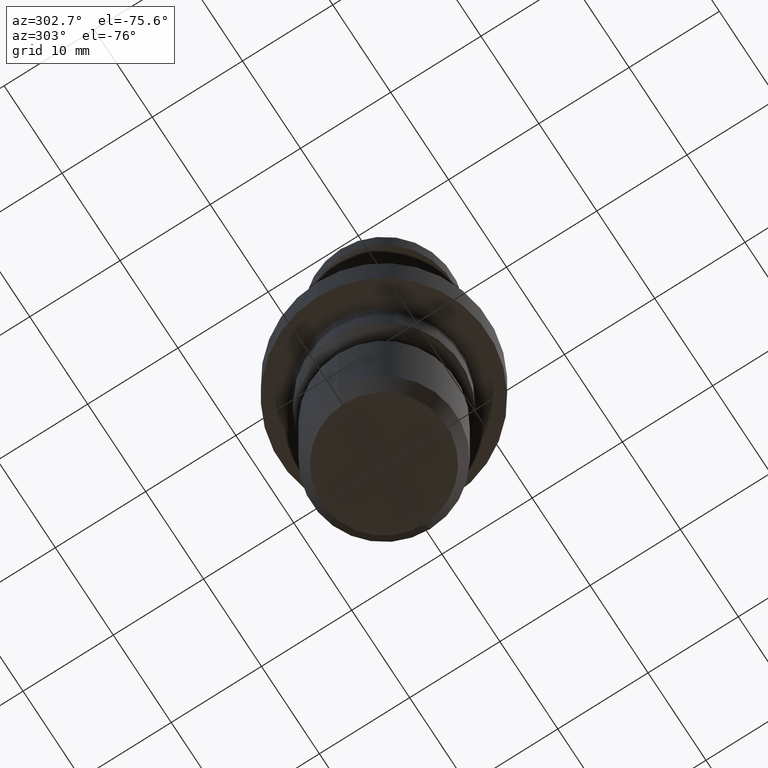
[diagram: clean part render]
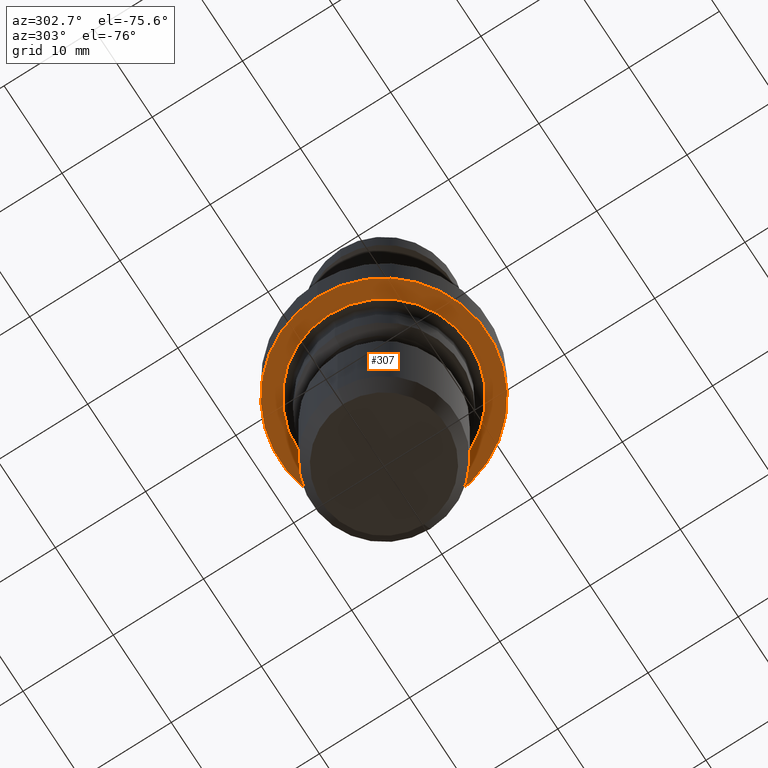
[diagram: same view with one face highlighted and labeled with its STEP entity id]
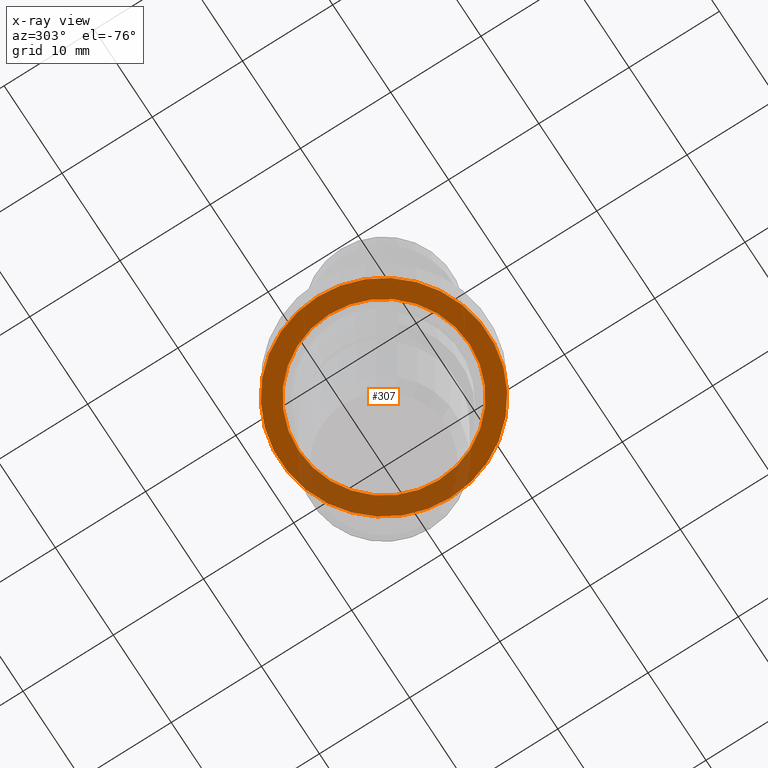
[diagram: x-ray of the same camera — body ghosted, the highlighted face saturated]
A machine part, auxiliary view. The second image highlights one B-rep face of the part: STEP entity #307.
The next image is the same camera in x-ray: the body ghosted, the highlighted face saturated — about 27% of this face is hidden behind the body in this view.
In plain terms, the highlighted planar face has unit normal (0, -0, 1).
Its self-contained STEP definition (entity closure, byte-faithful):
#31 = EDGE_CURVE ( 'NONE', #944, #279, #167, .T. ) ;
#37 = AXIS2_PLACEMENT_3D ( 'NONE', #767, #489, #842 ) ;
#87 = DIRECTION ( 'NONE',  ( -0.0000000000000000000, -0.0000000000000000000, 1.000000000000000000 ) ) ;
#113 = DIRECTION ( 'NONE',  ( -0.0000000000000000000, -0.0000000000000000000, 1.000000000000000000 ) ) ;
#167 = CIRCLE ( 'NONE', #689, 11.50000000000000000 ) ;
#201 = CIRCLE ( 'NONE', #1015, 9.479999999998909700 ) ;
#215 = EDGE_LOOP ( 'NONE', ( #798, #270 ) ) ;
#227 = ORIENTED_EDGE ( 'NONE', *, *, #299, .F. ) ;
#230 = DIRECTION ( 'NONE',  ( 1.000000000000000000, 0.0000000000000000000, 0.0000000000000000000 ) ) ;
#268 = AXIS2_PLACEMENT_3D ( 'NONE', #866, #87, #506 ) ;
#270 = ORIENTED_EDGE ( 'NONE', *, *, #824, .T. ) ;
#279 = VERTEX_POINT ( 'NONE', #1025 ) ;
#288 = FACE_OUTER_BOUND ( 'NONE', #379, .T. ) ;
#299 = EDGE_CURVE ( 'NONE', #279, #944, #741, .T. ) ;
#307 = ADVANCED_FACE ( 'NONE', ( #288, #512 ), #413, .F. ) ;
#317 = CIRCLE ( 'NONE', #268, 9.479999999998909700 ) ;
#335 = VERTEX_POINT ( 'NONE', #573 ) ;
#379 = EDGE_LOOP ( 'NONE', ( #227, #712 ) ) ;
#413 = PLANE ( 'NONE',  #37 ) ;
#417 = CARTESIAN_POINT ( 'NONE',  ( 0.0000000000000000000, 0.0000000000000000000, -35.00000000000000700 ) ) ;
#489 = DIRECTION ( 'NONE',  ( 0.0000000000000000000, -0.0000000000000000000, 1.000000000000000000 ) ) ;
#506 = DIRECTION ( 'NONE',  ( 1.000000000000000000, 0.0000000000000000000, 0.0000000000000000000 ) ) ;
#512 = FACE_BOUND ( 'NONE', #215, .T. ) ;
#570 = CARTESIAN_POINT ( 'NONE',  ( -11.50000000000000000, 1.408343819019456200E-015, -35.00000000000000700 ) ) ;
#573 = CARTESIAN_POINT ( 'NONE',  ( 9.479999999998909700, 1.160965165591557200E-015, -35.00000000000000700 ) ) ;
#583 = DIRECTION ( 'NONE',  ( 1.000000000000000000, 0.0000000000000000000, 0.0000000000000000000 ) ) ;
#669 = DIRECTION ( 'NONE',  ( -0.0000000000000000000, -0.0000000000000000000, 1.000000000000000000 ) ) ;
#672 = DIRECTION ( 'NONE',  ( -0.0000000000000000000, -0.0000000000000000000, 1.000000000000000000 ) ) ;
#677 = CARTESIAN_POINT ( 'NONE',  ( 0.0000000000000000000, 0.0000000000000000000, -35.00000000000000700 ) ) ;
#681 = EDGE_CURVE ( 'NONE', #1108, #335, #317, .T. ) ;
#689 = AXIS2_PLACEMENT_3D ( 'NONE', #906, #113, #808 ) ;
#712 = ORIENTED_EDGE ( 'NONE', *, *, #31, .F. ) ;
#741 = CIRCLE ( 'NONE', #754, 11.50000000000000000 ) ;
#754 = AXIS2_PLACEMENT_3D ( 'NONE', #677, #669, #230 ) ;
#767 = CARTESIAN_POINT ( 'NONE',  ( 0.0000000000000000000, 11.50000000000000000, -35.00000000000000700 ) ) ;
#798 = ORIENTED_EDGE ( 'NONE', *, *, #681, .T. ) ;
#808 = DIRECTION ( 'NONE',  ( 1.000000000000000000, 0.0000000000000000000, 0.0000000000000000000 ) ) ;
#824 = EDGE_CURVE ( 'NONE', #335, #1108, #201, .T. ) ;
#842 = DIRECTION ( 'NONE',  ( 1.000000000000000000, 0.0000000000000000000, 0.0000000000000000000 ) ) ;
#866 = CARTESIAN_POINT ( 'NONE',  ( 0.0000000000000000000, 0.0000000000000000000, -35.00000000000000700 ) ) ;
#885 = CARTESIAN_POINT ( 'NONE',  ( -9.479999999998909700, 0.0000000000000000000, -35.00000000000000700 ) ) ;
#906 = CARTESIAN_POINT ( 'NONE',  ( 0.0000000000000000000, 0.0000000000000000000, -35.00000000000000700 ) ) ;
#944 = VERTEX_POINT ( 'NONE', #570 ) ;
#1015 = AXIS2_PLACEMENT_3D ( 'NONE', #417, #672, #583 ) ;
#1025 = CARTESIAN_POINT ( 'NONE',  ( 11.50000000000000000, 0.0000000000000000000, -35.00000000000000700 ) ) ;
#1108 = VERTEX_POINT ( 'NONE', #885 ) ;